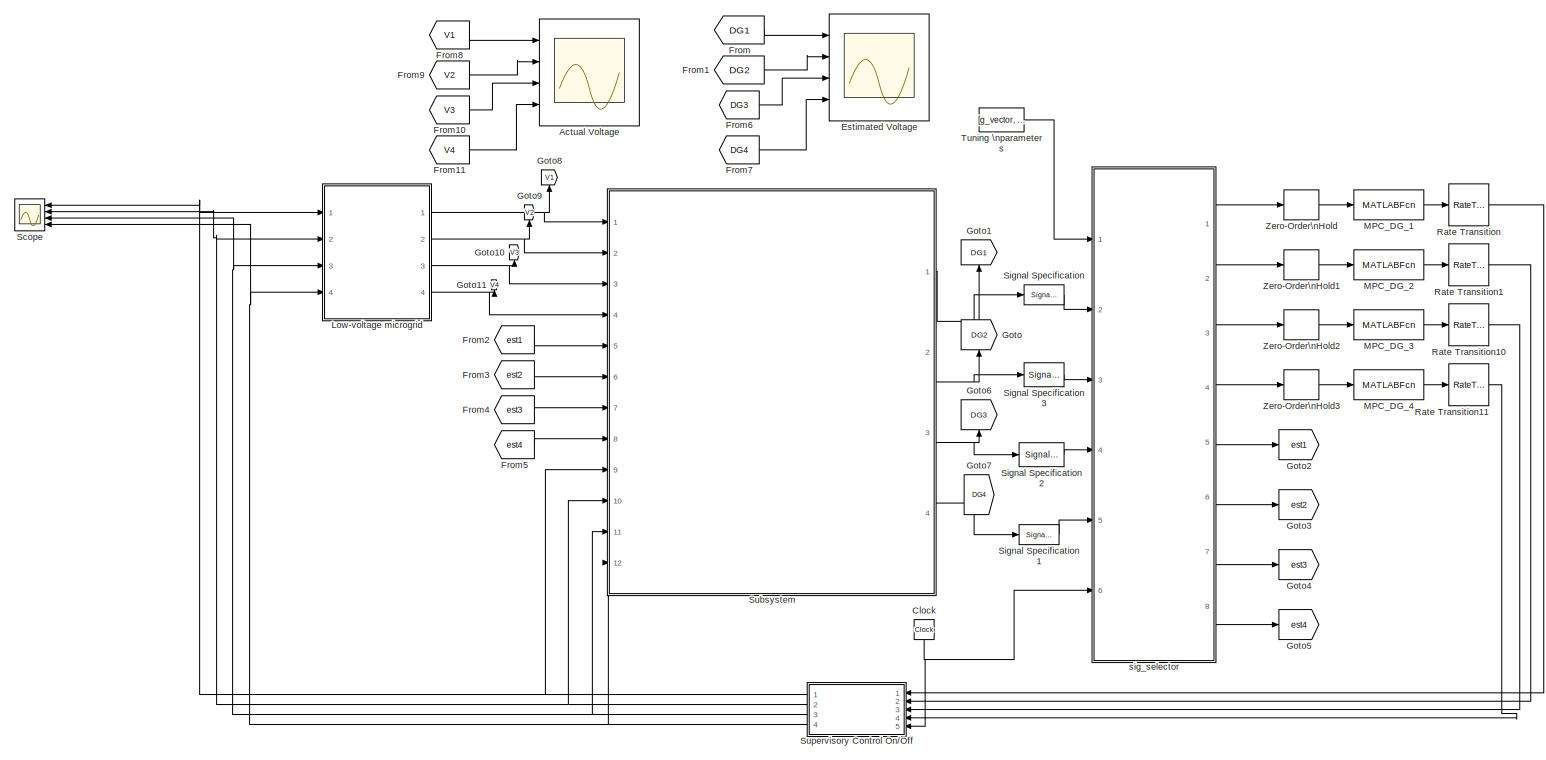
[diagram: root canvas - part 1/1, most of the canvas]
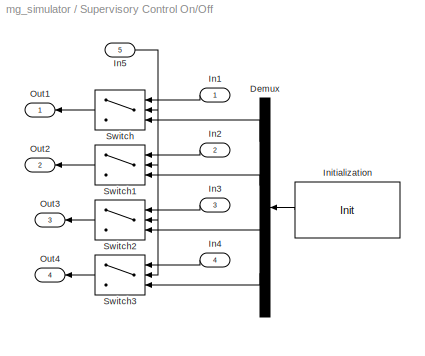
MODEL mg_simulator
KIND model
CONFIG InitFcn = mg_simulator_init
BLOCK [Scope] Actual Voltage
  NumInputPorts = 4
  Ports = [4]
  SID = 976
  ScopeSpecificationString = Simulink.scopes.TimeScopeBlockCfg('CurrentConfiguration', extmgr.ConfigurationSet(extmgr.Configuration('Core','General UI',true),extmgr.Configuration('Core','Source UI',true),extmgr.Configuration('Sources','WiredSimulink',true,'DataLoggingVariableName','ScopeData1'),extmgr.Configuration('Visuals','Time Domain',true,'SerializedDisplays',{struct('MinYLimReal','73.77651','MaxYLimReal','336.37981','YL...<+1710ch>
BLOCK [Clock] Clock
  SID = 163
BLOCK [Scope] Estimated Voltage
  NumInputPorts = 4
  Ports = [4]
  SID = 727
  ScopeSpecificationString = Simulink.scopes.TimeScopeBlockCfg('CurrentConfiguration', extmgr.ConfigurationSet(extmgr.Configuration('Core','General UI',true),extmgr.Configuration('Core','Source UI',true),extmgr.Configuration('Sources','WiredSimulink',true,'DataLoggingVariableName','ScopeData1'),extmgr.Configuration('Visuals','Time Domain',true,'SerializedDisplays',{struct('MinYLimReal','283.95953','MaxYLimReal','340.23079','Y...<+1826ch>
BLOCK [From] From
  GotoTag = DG1
  SID = 470
BLOCK [From] From1
  GotoTag = DG2
  SID = 471
BLOCK [From] From10
  GotoTag = V3
  SID = 987
BLOCK [From] From11
  GotoTag = V4
  SID = 988
BLOCK [From] From2
  GotoTag = est1
  SID = 483
BLOCK [From] From3
  GotoTag = est2
  SID = 485
BLOCK [From] From4
  GotoTag = est3
  SID = 673
BLOCK [From] From5
  GotoTag = est4
  SID = 674
BLOCK [From] From6
  GotoTag = DG3
  SID = 728
BLOCK [From] From7
  GotoTag = DG4
  SID = 729
BLOCK [From] From8
  GotoTag = V1
  SID = 981
BLOCK [From] From9
  GotoTag = V2
  SID = 986
BLOCK [Goto] Goto
  GotoTag = DG2
  SID = 466
BLOCK [Goto] Goto1
  GotoTag = DG1
  SID = 467
BLOCK [Goto] Goto10
  GotoTag = V3
  SID = 984
BLOCK [Goto] Goto11
  GotoTag = V4
  SID = 985
BLOCK [Goto] Goto2
  GotoTag = est1
  SID = 481
BLOCK [Goto] Goto3
  GotoTag = est2
  SID = 482
BLOCK [Goto] Goto4
  GotoTag = est3
  SID = 682
BLOCK [Goto] Goto5
  GotoTag = est4
  SID = 683
BLOCK [Goto] Goto6
  GotoTag = DG3
  SID = 725
BLOCK [Goto] Goto7
  GotoTag = DG4
  SID = 726
BLOCK [Goto] Goto8
  GotoTag = V1
  SID = 982
BLOCK [Goto] Goto9
  GotoTag = V2
  SID = 983
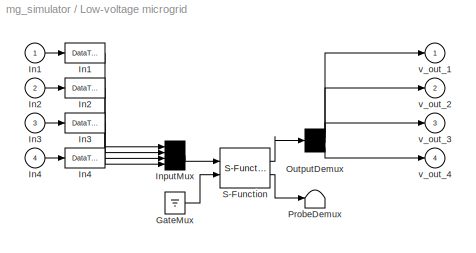
BLOCK [SubSystem] Low-voltage microgrid
  CopyFcn = plecs('sl', 203);
  DeleteFcn = plecs('sl', 205);
  DestroyFcn = plecs('sl', 207);
  ErrorFcn = plerrorfcn
  InitFcn = plecs('sl', 214);
  LoadFcn = plecs('sl', 200);
  NameChangeFcn = plecs('sl', 210);
  OpenFcn = plecs('sl', 202);
  Ports = [4, 4]
  PostSaveFcn = plecs('sl', 201);
  PreCopyFcn = plecs('sl', 216);
  PreSaveFcn = plecs('sl', 211);
  RequestExecContextInheritance = off
  SID = 1036
  StartFcn = plecs('sl', 208);
  StopFcn = plecs('sl', 209);
  UndoDeleteFcn = plecs('sl', 206);
  Variant = off
BLOCK [Ground] Low-voltage microgrid/ GateMux 
  SID = 1036:312
BLOCK [DataTypeConversion] Low-voltage microgrid/ In1 
  SID = 1036:1059
BLOCK [DataTypeConversion] Low-voltage microgrid/ In2 
  SID = 1036:1060
BLOCK [DataTypeConversion] Low-voltage microgrid/ In3 
  SID = 1036:1061
BLOCK [DataTypeConversion] Low-voltage microgrid/ In4 
  SID = 1036:1062
BLOCK [Mux] Low-voltage microgrid/ InputMux 
  Inputs = [ 1 1 1 1 ]
  Ports = [4, 1]
  SID = 1036:400
BLOCK [Demux] Low-voltage microgrid/ OutputDemux 
  Outputs = [ 1 1 1 1 ]
  Ports = [1, 4]
  SID = 1036:23
BLOCK [Terminator] Low-voltage microgrid/ ProbeDemux 
  SID = 1036:4
BLOCK [S-Function] Low-voltage microgrid/ S-Function 
  EnableBusSupport = off
  FunctionName = plecs
  Ports = [2, 2]
  SFcnIsStateOwnerBlock = off
  SFunctionDeploymentMode = off
  SID = 1036:5
BLOCK [Inport] Low-voltage microgrid/In1
  IconDisplay = Port number
  PortDimensions = 1
  SID = 1036:399
BLOCK [Inport] Low-voltage microgrid/In2
  IconDisplay = Port number
  Port = 2
  PortDimensions = 1
  SID = 1036:410
BLOCK [Inport] Low-voltage microgrid/In3
  IconDisplay = Port number
  Port = 3
  PortDimensions = 1
  SID = 1036:411
BLOCK [Inport] Low-voltage microgrid/In4
  IconDisplay = Port number
  Port = 4
  PortDimensions = 1
  SID = 1036:412
BLOCK [Outport] Low-voltage microgrid/v_out_1
  IconDisplay = Port number
  PortDimensions = 1
  SID = 1036:13
BLOCK [Outport] Low-voltage microgrid/v_out_2
  IconDisplay = Port number
  Port = 2
  PortDimensions = 1
  SID = 1036:15
BLOCK [Outport] Low-voltage microgrid/v_out_3
  IconDisplay = Port number
  Port = 3
  PortDimensions = 1
  SID = 1036:16
BLOCK [Outport] Low-voltage microgrid/v_out_4
  IconDisplay = Port number
  Port = 4
  PortDimensions = 1
  SID = 1036:17
BLOCK [MATLABFcn] MPC_DG_1
  MATLABFcn = mpc_run_nodewise_mdl_fast(u(1:2)',u(3),u(4),u(5),u(6),u(7),u(8),u(9),u(10),u(11),u(12),u(13),u(14),u(15))
  Ports = [1, 1]
  SID = 201
  SampleTime = Ts
BLOCK [MATLABFcn] MPC_DG_2
  MATLABFcn = mpc_run_nodewise_mdl_fast2(u(1:2)',u(3:4),u(5:6),u(7),u(8),u(9),u(10),u(11),u(12),u(13),u(14),u(15),u(16),u(17))
  Ports = [1, 1]
  SID = 227
  SampleTime = Ts
BLOCK [MATLABFcn] MPC_DG_3
  MATLABFcn = mpc_run_nodewise_mdl_fast3(u(1:2)',u(3:4),u(5:6),u(7),u(8),u(9),u(10),u(11),u(12),u(13),u(14),u(15),u(16),u(17))
  Ports = [1, 1]
  SID = 675
  SampleTime = Ts
BLOCK [MATLABFcn] MPC_DG_4
  MATLABFcn = mpc_run_nodewise_mdl_fast4(u(1:2)',u(3),u(4),u(5),u(6),u(7),u(8),u(9),u(10),u(11),u(12),u(13),u(14),u(15))
  Ports = [1, 1]
  SID = 678
  SampleTime = Ts
BLOCK [RateTransition] Rate Transition
  OutPortSampleTime = Ts
  OutPortSampleTimeOpt = Inherit
  SID = 226
BLOCK [RateTransition] Rate Transition1
  OutPortSampleTime = Ts
  OutPortSampleTimeOpt = Inherit
  SID = 228
BLOCK [RateTransition] Rate Transition10
  OutPortSampleTime = Ts
  OutPortSampleTimeOpt = Inherit
  SID = 676
BLOCK [RateTransition] Rate Transition11
  OutPortSampleTime = Ts
  OutPortSampleTimeOpt = Inherit
  SID = 679
BLOCK [Scope] Scope
  NumInputPorts = 4
  Ports = [4]
  SID = 991
  ScopeSpecificationString = Simulink.scopes.TimeScopeBlockCfg('CurrentConfiguration', extmgr.ConfigurationSet(extmgr.Configuration('Core','General UI',true),extmgr.Configuration('Core','Source UI',true),extmgr.Configuration('Sources','WiredSimulink',true,'DataLoggingVariableName','ScopeData2'),extmgr.Configuration('Visuals','Time Domain',true,'SerializedDisplays',{struct('MinYLimReal','-26.72559','MaxYLimReal','780.74729','Y...<+1544ch>
BLOCK [SignalSpecification] Signal Specification
  Dimensions = [ 1 2]
  SID = 745
BLOCK [SignalSpecification] Signal Specification1
  Dimensions = [ 1 2]
  SID = 747
BLOCK [SignalSpecification] Signal Specification2
  Dimensions = [ 1 2]
  SID = 748
BLOCK [SignalSpecification] Signal Specification3
  Dimensions = [ 1 2]
  SID = 749
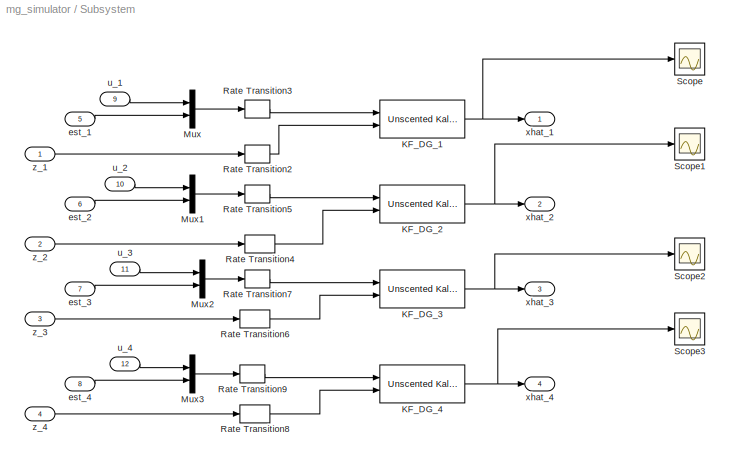
BLOCK [SubSystem] Subsystem
  Ports = [12, 4]
  RequestExecContextInheritance = off
  SID = 707
  Variant = off
BLOCK [Reference] Subsystem/KF_DG_1  REF=sharedTrackingLibrary/Unscented Kalman Filter
  Alpha = 1e-1
  Beta = 2
  DataType = double
  EnableMultirate = off
  HasAdditiveMeasurementNoise1 = Nonadditive
  HasAdditiveMeasurementNoise2 = Additive
  HasAdditiveMeasurementNoise3 = Additive
  HasAdditiveMeasurementNoise4 = Additive
  HasAdditiveMeasurementNoise5 = Additive
  HasAdditiveProcessNoise = Nonadditive
  HasMeasurementEnablePort1 = off
  HasMeasurementEnablePort2 = off
  HasMeasurementEnablePort3 = off
  HasMeasurementEnablePort4 = off
  HasMeasurementEnablePort5 = off
  HasMeasurementFcnExtraArgument1 = 0
  HasMeasurementFcnExtraArgument2 = 0
  HasMeasurementFcnExtraArgument3 = 0
  HasMeasurementFcnExtraArgument4 = 0
  HasMeasurementFcnExtraArgument5 = 0
  HasStateTransitionFcnExtraArgument = 1
  HasTimeVaryingMeasurementNoise1 = off
  HasTimeVaryingMeasurementNoise2 = off
  HasTimeVaryingMeasurementNoise3 = off
  HasTimeVaryingMeasurementNoise4 = off
  HasTimeVaryingMeasurementNoise5 = off
  HasTimeVaryingProcessNoise = off
  InitialState = init_state{i}
  InitialStateCovariance = p_noise_est{i}
  Kappa = 0
  MeasurementFcn1 = estimator_measurementFcn
  MeasurementFcn1SampleTime = 1
  MeasurementFcn2 = myMeasurementFcn
  MeasurementFcn2SampleTime = 1
  MeasurementFcn3 = myMeasurementFcn
  MeasurementFcn3SampleTime = 1
  MeasurementFcn4 = myMeasurementFcn
  MeasurementFcn4SampleTime = 1
  MeasurementFcn5 = myMeasurementFcn
  MeasurementFcn5SampleTime = 1
  MeasurementNoise1 = w_noise_est(i)
  MeasurementNoise2 = 1
  MeasurementNoise3 = 1
  MeasurementNoise4 = 1
  MeasurementNoise5 = 1
  NumberOfMeasurements = 1
  OutputStateCovariance = off
  Ports = [2, 1]
  ProcessNoise = p_noise_est{i}
  SID = 473
  SampleTime = Ts
  SourceBlock = sharedTrackingLibrary/Unscented Kalman Filter
  SourceProductBaseCode = CT
  SourceProductName = Control System Toolbox
  SourceType = Unscented Kalman Filter
  StateTransitionFcn = estimator_pflow_dynamics
  StateTransitionFcnSampleTime = 1
  UseCurrentEstimator = on
BLOCK [Reference] Subsystem/KF_DG_2  REF=sharedTrackingLibrary/Unscented Kalman Filter
  Alpha = 1e-1
  Beta = 2
  DataType = double
  EnableMultirate = off
  HasAdditiveMeasurementNoise1 = Nonadditive
  HasAdditiveMeasurementNoise2 = Additive
  HasAdditiveMeasurementNoise3 = Additive
  HasAdditiveMeasurementNoise4 = Additive
  HasAdditiveMeasurementNoise5 = Additive
  HasAdditiveProcessNoise = Nonadditive
  HasMeasurementEnablePort1 = off
  HasMeasurementEnablePort2 = off
  HasMeasurementEnablePort3 = off
  HasMeasurementEnablePort4 = off
  HasMeasurementEnablePort5 = off
  HasMeasurementFcnExtraArgument1 = 0
  HasMeasurementFcnExtraArgument2 = 0
  HasMeasurementFcnExtraArgument3 = 0
  HasMeasurementFcnExtraArgument4 = 0
  HasMeasurementFcnExtraArgument5 = 0
  HasStateTransitionFcnExtraArgument = 1
  HasTimeVaryingMeasurementNoise1 = off
  HasTimeVaryingMeasurementNoise2 = off
  HasTimeVaryingMeasurementNoise3 = off
  HasTimeVaryingMeasurementNoise4 = off
  HasTimeVaryingMeasurementNoise5 = off
  HasTimeVaryingProcessNoise = off
  InitialState = init_state{i}
  InitialStateCovariance = p_noise_est{i}
  Kappa = 0
  MeasurementFcn1 = estimator_measurementFcn
  MeasurementFcn1SampleTime = 1
  MeasurementFcn2 = myMeasurementFcn
  MeasurementFcn2SampleTime = 1
  MeasurementFcn3 = myMeasurementFcn
  MeasurementFcn3SampleTime = 1
  MeasurementFcn4 = myMeasurementFcn
  MeasurementFcn4SampleTime = 1
  MeasurementFcn5 = myMeasurementFcn
  MeasurementFcn5SampleTime = 1
  MeasurementNoise1 = w_noise_est(i)
  MeasurementNoise2 = 1
  MeasurementNoise3 = 1
  MeasurementNoise4 = 1
  MeasurementNoise5 = 1
  NumberOfMeasurements = 1
  OutputStateCovariance = off
  Ports = [2, 1]
  ProcessNoise = p_noise_est{i}
  SID = 740
  SampleTime = Ts
  SourceBlock = sharedTrackingLibrary/Unscented Kalman Filter
  SourceProductBaseCode = CT
  SourceProductName = Control System Toolbox
  SourceType = Unscented Kalman Filter
  StateTransitionFcn = estimator_pflow_dynamics
  StateTransitionFcnSampleTime = 1
  UseCurrentEstimator = on
BLOCK [Reference] Subsystem/KF_DG_3  REF=sharedTrackingLibrary/Unscented Kalman Filter
  Alpha = 1e-1
  Beta = 2
  DataType = double
  EnableMultirate = off
  HasAdditiveMeasurementNoise1 = Nonadditive
  HasAdditiveMeasurementNoise2 = Additive
  HasAdditiveMeasurementNoise3 = Additive
  HasAdditiveMeasurementNoise4 = Additive
  HasAdditiveMeasurementNoise5 = Additive
  HasAdditiveProcessNoise = Nonadditive
  HasMeasurementEnablePort1 = off
  HasMeasurementEnablePort2 = off
  HasMeasurementEnablePort3 = off
  HasMeasurementEnablePort4 = off
  HasMeasurementEnablePort5 = off
  HasMeasurementFcnExtraArgument1 = 0
  HasMeasurementFcnExtraArgument2 = 0
  HasMeasurementFcnExtraArgument3 = 0
  HasMeasurementFcnExtraArgument4 = 0
  HasMeasurementFcnExtraArgument5 = 0
  HasStateTransitionFcnExtraArgument = 1
  HasTimeVaryingMeasurementNoise1 = off
  HasTimeVaryingMeasurementNoise2 = off
  HasTimeVaryingMeasurementNoise3 = off
  HasTimeVaryingMeasurementNoise4 = off
  HasTimeVaryingMeasurementNoise5 = off
  HasTimeVaryingProcessNoise = off
  InitialState = init_state{i}
  InitialStateCovariance = p_noise_est{i}
  Kappa = 0
  MeasurementFcn1 = estimator_measurementFcn
  MeasurementFcn1SampleTime = 1
  MeasurementFcn2 = myMeasurementFcn
  MeasurementFcn2SampleTime = 1
  MeasurementFcn3 = myMeasurementFcn
  MeasurementFcn3SampleTime = 1
  MeasurementFcn4 = myMeasurementFcn
  MeasurementFcn4SampleTime = 1
  MeasurementFcn5 = myMeasurementFcn
  MeasurementFcn5SampleTime = 1
  MeasurementNoise1 = w_noise_est(i)
  MeasurementNoise2 = 1
  MeasurementNoise3 = 1
  MeasurementNoise4 = 1
  MeasurementNoise5 = 1
  NumberOfMeasurements = 1
  OutputStateCovariance = off
  Ports = [2, 1]
  ProcessNoise = p_noise_est{i}
  SID = 741
  SampleTime = Ts
  SourceBlock = sharedTrackingLibrary/Unscented Kalman Filter
  SourceProductBaseCode = CT
  SourceProductName = Control System Toolbox
  SourceType = Unscented Kalman Filter
  StateTransitionFcn = estimator_pflow_dynamics
  StateTransitionFcnSampleTime = 1
  UseCurrentEstimator = on
BLOCK [Reference] Subsystem/KF_DG_4  REF=sharedTrackingLibrary/Unscented Kalman Filter
  Alpha = 1e-1
  Beta = 2
  DataType = double
  EnableMultirate = off
  HasAdditiveMeasurementNoise1 = Nonadditive
  HasAdditiveMeasurementNoise2 = Additive
  HasAdditiveMeasurementNoise3 = Additive
  HasAdditiveMeasurementNoise4 = Additive
  HasAdditiveMeasurementNoise5 = Additive
  HasAdditiveProcessNoise = Nonadditive
  HasMeasurementEnablePort1 = off
  HasMeasurementEnablePort2 = off
  HasMeasurementEnablePort3 = off
  HasMeasurementEnablePort4 = off
  HasMeasurementEnablePort5 = off
  HasMeasurementFcnExtraArgument1 = 0
  HasMeasurementFcnExtraArgument2 = 0
  HasMeasurementFcnExtraArgument3 = 0
  HasMeasurementFcnExtraArgument4 = 0
  HasMeasurementFcnExtraArgument5 = 0
  HasStateTransitionFcnExtraArgument = 1
  HasTimeVaryingMeasurementNoise1 = off
  HasTimeVaryingMeasurementNoise2 = off
  HasTimeVaryingMeasurementNoise3 = off
  HasTimeVaryingMeasurementNoise4 = off
  HasTimeVaryingMeasurementNoise5 = off
  HasTimeVaryingProcessNoise = off
  InitialState = init_state{i}
  InitialStateCovariance = p_noise_est{i}
  Kappa = 0
  MeasurementFcn1 = estimator_measurementFcn
  MeasurementFcn1SampleTime = 1
  MeasurementFcn2 = myMeasurementFcn
  MeasurementFcn2SampleTime = 1
  MeasurementFcn3 = myMeasurementFcn
  MeasurementFcn3SampleTime = 1
  MeasurementFcn4 = myMeasurementFcn
  MeasurementFcn4SampleTime = 1
  MeasurementFcn5 = myMeasurementFcn
  MeasurementFcn5SampleTime = 1
  MeasurementNoise1 = w_noise_est(i)
  MeasurementNoise2 = 1
  MeasurementNoise3 = 1
  MeasurementNoise4 = 1
  MeasurementNoise5 = 1
  NumberOfMeasurements = 1
  OutputStateCovariance = off
  Ports = [2, 1]
  ProcessNoise = p_noise_est{i}
  SID = 744
  SampleTime = Ts
  SourceBlock = sharedTrackingLibrary/Unscented Kalman Filter
  SourceProductBaseCode = CT
  SourceProductName = Control System Toolbox
  SourceType = Unscented Kalman Filter
  StateTransitionFcn = estimator_pflow_dynamics
  StateTransitionFcnSampleTime = 1
  UseCurrentEstimator = on
BLOCK [Mux] Subsystem/Mux
  DisplayOption = bar
  Inputs = 2
  Ports = [2, 1]
  SID = 475
BLOCK [Mux] Subsystem/Mux1
  DisplayOption = bar
  Inputs = 2
  Ports = [2, 1]
  SID = 478
BLOCK [Mux] Subsystem/Mux2
  DisplayOption = bar
  Inputs = 2
  Ports = [2, 1]
  SID = 665
BLOCK [Mux] Subsystem/Mux3
  DisplayOption = bar
  Inputs = 2
  Ports = [2, 1]
  SID = 669
BLOCK [RateTransition] Subsystem/Rate Transition2
  SID = 486
BLOCK [RateTransition] Subsystem/Rate Transition3
  SID = 487
BLOCK [RateTransition] Subsystem/Rate Transition4
  SID = 488
BLOCK [RateTransition] Subsystem/Rate Transition5
  SID = 489
BLOCK [RateTransition] Subsystem/Rate Transition6
  SID = 666
BLOCK [RateTransition] Subsystem/Rate Transition7
  SID = 667
BLOCK [RateTransition] Subsystem/Rate Transition8
  SID = 670
BLOCK [RateTransition] Subsystem/Rate Transition9
  SID = 671
BLOCK [Scope] Subsystem/Scope
  NumInputPorts = 1
  Ports = [1]
  SID = 750
  ScopeSpecificationString = Simulink.scopes.TimeScopeBlockCfg('CurrentConfiguration', extmgr.ConfigurationSet(extmgr.Configuration('Core','General UI',true),extmgr.Configuration('Core','Source UI',true),extmgr.Configuration('Sources','WiredSimulink',true,'DataLoggingVariableName','ScopeData1'),extmgr.Configuration('Visuals','Time Domain',true,'SerializedDisplays',{struct('MinYLimReal','303.53813','MaxYLimReal','318.53513','Y...<+1448ch>
BLOCK [Scope] Subsystem/Scope1
  NumInputPorts = 1
  Ports = [1]
  SID = 751
  ScopeSpecificationString = Simulink.scopes.TimeScopeBlockCfg('CurrentConfiguration', extmgr.ConfigurationSet(extmgr.Configuration('Core','General UI',true),extmgr.Configuration('Core','Source UI',true),extmgr.Configuration('Sources','WiredSimulink',true,'DataLoggingVariableName','ScopeData2'),extmgr.Configuration('Visuals','Time Domain',true,'SerializedDisplays',{struct('MinYLimReal','303.53813','MaxYLimReal','318.53513','Y...<+1431ch>
BLOCK [Scope] Subsystem/Scope2
  NumInputPorts = 1
  Ports = [1]
  SID = 752
  ScopeSpecificationString = Simulink.scopes.TimeScopeBlockCfg('CurrentConfiguration', extmgr.ConfigurationSet(extmgr.Configuration('Core','General UI',true),extmgr.Configuration('Core','Source UI',true),extmgr.Configuration('Sources','WiredSimulink',true,'DataLoggingVariableName','ScopeData3'),extmgr.Configuration('Visuals','Time Domain',true),extmgr.Configuration('Tools','Plot Navigation',true),extmgr.Configuration('Tools',...<+40ch>
BLOCK [Scope] Subsystem/Scope3
  NumInputPorts = 1
  Ports = [1]
  SID = 753
  ScopeSpecificationString = Simulink.scopes.TimeScopeBlockCfg('CurrentConfiguration', extmgr.ConfigurationSet(extmgr.Configuration('Core','General UI',true),extmgr.Configuration('Core','Source UI',true),extmgr.Configuration('Sources','WiredSimulink',true,'DataLoggingVariableName','ScopeData4'),extmgr.Configuration('Visuals','Time Domain',true),extmgr.Configuration('Tools','Plot Navigation',true),extmgr.Configuration('Tools',...<+40ch>
BLOCK [Inport] Subsystem/est_1
  IconDisplay = Port number
  Port = 5
  SID = 712
BLOCK [Inport] Subsystem/est_2
  IconDisplay = Port number
  Port = 6
  SID = 713
BLOCK [Inport] Subsystem/est_3
  IconDisplay = Port number
  Port = 7
  SID = 714
BLOCK [Inport] Subsystem/est_4
  IconDisplay = Port number
  Port = 8
  SID = 715
BLOCK [Inport] Subsystem/u_1
  IconDisplay = Port number
  Port = 9
  SID = 716
BLOCK [Inport] Subsystem/u_2
  IconDisplay = Port number
  Port = 10
  SID = 717
BLOCK [Inport] Subsystem/u_3
  IconDisplay = Port number
  Port = 11
  SID = 718
BLOCK [Inport] Subsystem/u_4
  IconDisplay = Port number
  Port = 12
  SID = 719
BLOCK [Outport] Subsystem/xhat_1
  IconDisplay = Port number
  SID = 720
BLOCK [Outport] Subsystem/xhat_2
  IconDisplay = Port number
  Port = 2
  SID = 723
BLOCK [Outport] Subsystem/xhat_3
  IconDisplay = Port number
  Port = 3
  SID = 724
BLOCK [Outport] Subsystem/xhat_4
  IconDisplay = Port number
  Port = 4
  SID = 722
BLOCK [Inport] Subsystem/z_1
  IconDisplay = Port number
  SID = 708
BLOCK [Inport] Subsystem/z_2
  IconDisplay = Port number
  Port = 2
  SID = 709
BLOCK [Inport] Subsystem/z_3
  IconDisplay = Port number
  Port = 3
  SID = 710
BLOCK [Inport] Subsystem/z_4
  IconDisplay = Port number
  Port = 4
  SID = 711
BLOCK [SubSystem] Supervisory Control On//Off
  Ports = [5, 4]
  RequestExecContextInheritance = off
  SID = 242
  Variant = off
BLOCK [Demux] Supervisory Control On//Off/Demux
  DisplayOption = bar
  Ports = [1, 4]
  SID = 241
BLOCK [Inport] Supervisory Control On//Off/In1
  IconDisplay = Port number
  SID = 243
BLOCK [Inport] Supervisory Control On//Off/In2
  IconDisplay = Port number
  Port = 2
  SID = 244
BLOCK [Inport] Supervisory Control On//Off/In3
  IconDisplay = Port number
  Port = 3
  SID = 686
BLOCK [Inport] Supervisory Control On//Off/In4
  IconDisplay = Port number
  Port = 4
  SID = 687
BLOCK [Inport] Supervisory Control On//Off/In5
  IconDisplay = Port number
  Port = 5
  SID = 247
BLOCK [Constant] Supervisory Control On//Off/Initialization
  SID = 240
  Value = Init
BLOCK [Outport] Supervisory Control On//Off/Out1
  IconDisplay = Port number
  SID = 248
BLOCK [Outport] Supervisory Control On//Off/Out2
  IconDisplay = Port number
  Port = 2
  SID = 249
BLOCK [Outport] Supervisory Control On//Off/Out3
  IconDisplay = Port number
  Port = 3
  SID = 688
BLOCK [Outport] Supervisory Control On//Off/Out4
  IconDisplay = Port number
  Port = 4
  SID = 689
BLOCK [Switch] Supervisory Control On//Off/Switch
  InputSameDT = off
  SID = 236
  SaturateOnIntegerOverflow = off
  Threshold = Thresh
BLOCK [Switch] Supervisory Control On//Off/Switch1
  InputSameDT = off
  SID = 237
  SaturateOnIntegerOverflow = off
  Threshold = Thresh
BLOCK [Switch] Supervisory Control On//Off/Switch2
  InputSameDT = off
  SID = 684
  SaturateOnIntegerOverflow = off
  Threshold = Thresh
BLOCK [Switch] Supervisory Control On//Off/Switch3
  InputSameDT = off
  SID = 685
  SaturateOnIntegerOverflow = off
  Threshold = Thresh
BLOCK [Constant] Tuning \nparameters
  SID = 15
  Value = [g_vector, N, v_ref, Ts, Q, R, W, Q_Li, n_Qi, Q_di]
BLOCK [ZeroOrderHold] Zero-Order\nHold
  SID = 224
  SampleTime = Ts
BLOCK [ZeroOrderHold] Zero-Order\nHold1
  SID = 229
  SampleTime = Ts
BLOCK [ZeroOrderHold] Zero-Order\nHold2
  SID = 677
  SampleTime = Ts
BLOCK [ZeroOrderHold] Zero-Order\nHold3
  SID = 680
  SampleTime = Ts
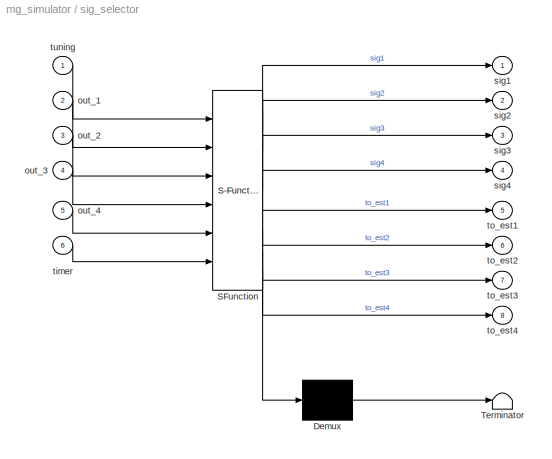
BLOCK [SubSystem] sig_selector
  ErrorFcn = Stateflow.Translate.translate
  PermitHierarchicalResolution = ExplicitOnly
  Ports = [6, 8]
  RequestExecContextInheritance = off
  SFBlockType = MATLAB Function
  SID = 200
  TreatAsAtomicUnit = on
  Variant = off
BLOCK [Demux] sig_selector/ Demux 
  Outputs = 1
  Ports = [1, 1]
  SID = 200::32
BLOCK [S-Function] sig_selector/ SFunction 
  EnableBusSupport = on
  FunctionName = sf_sfun
  PortCounts = [6 9]
  Ports = [6, 9]
  SFcnIsStateOwnerBlock = off
  SFunctionDeploymentMode = off
  SID = 200::31
  Tag = Stateflow S-Function mg_simulator 2
BLOCK [Terminator] sig_selector/ Terminator 
  SID = 200::33
BLOCK [Inport] sig_selector/out_1
  IconDisplay = Port number
  Port = 2
  SID = 200::23
BLOCK [Inport] sig_selector/out_2
  IconDisplay = Port number
  Port = 3
  SID = 200::24
BLOCK [Inport] sig_selector/out_3
  IconDisplay = Port number
  Port = 4
  SID = 200::45
BLOCK [Inport] sig_selector/out_4
  IconDisplay = Port number
  Port = 5
  SID = 200::46
BLOCK [Outport] sig_selector/sig1
  IconDisplay = Port number
  SID = 200::5
BLOCK [Outport] sig_selector/sig2
  IconDisplay = Port number
  Port = 2
  SID = 200::27
BLOCK [Outport] sig_selector/sig3
  IconDisplay = Port number
  Port = 3
  SID = 200::41
BLOCK [Outport] sig_selector/sig4
  IconDisplay = Port number
  Port = 4
  SID = 200::42
BLOCK [Inport] sig_selector/timer
  IconDisplay = Port number
  Port = 6
  SID = 200::30
BLOCK [Outport] sig_selector/to_est1
  IconDisplay = Port number
  Port = 5
  SID = 200::39
BLOCK [Outport] sig_selector/to_est2
  IconDisplay = Port number
  Port = 6
  SID = 200::40
BLOCK [Outport] sig_selector/to_est3
  IconDisplay = Port number
  Port = 7
  SID = 200::43
BLOCK [Outport] sig_selector/to_est4
  IconDisplay = Port number
  Port = 8
  SID = 200::44
BLOCK [Inport] sig_selector/tuning
  IconDisplay = Port number
  SID = 200::22
NET Clock:1 -> Supervisory Control On//Off:5, sig_selector:6
LINE From10:1 -> Actual Voltage:3
LINE From11:1 -> Actual Voltage:4
LINE From1:1 -> Estimated Voltage:2
LINE From2:1 -> Subsystem:5
LINE From3:1 -> Subsystem:6
LINE From4:1 -> Subsystem:7
LINE From5:1 -> Subsystem:8
LINE From6:1 -> Estimated Voltage:3
LINE From7:1 -> Estimated Voltage:4
LINE From8:1 -> Actual Voltage:1
LINE From9:1 -> Actual Voltage:2
LINE From:1 -> Estimated Voltage:1
LINE Low-voltage microgrid/ GateMux :1 -> Low-voltage microgrid/ S-Function :2
LINE Low-voltage microgrid/ In1 :1 -> Low-voltage microgrid/ InputMux :1
LINE Low-voltage microgrid/ In2 :1 -> Low-voltage microgrid/ InputMux :2
LINE Low-voltage microgrid/ In3 :1 -> Low-voltage microgrid/ InputMux :3
LINE Low-voltage microgrid/ In4 :1 -> Low-voltage microgrid/ InputMux :4
LINE Low-voltage microgrid/ InputMux :1 -> Low-voltage microgrid/ S-Function :1
LINE Low-voltage microgrid/ OutputDemux :1 -> Low-voltage microgrid/v_out_1:1
LINE Low-voltage microgrid/ OutputDemux :2 -> Low-voltage microgrid/v_out_2:1
LINE Low-voltage microgrid/ OutputDemux :3 -> Low-voltage microgrid/v_out_3:1
LINE Low-voltage microgrid/ OutputDemux :4 -> Low-voltage microgrid/v_out_4:1
LINE Low-voltage microgrid/ S-Function :1 -> Low-voltage microgrid/ OutputDemux :1
LINE Low-voltage microgrid/ S-Function :2 -> Low-voltage microgrid/ ProbeDemux :1
LINE Low-voltage microgrid/In1:1 -> Low-voltage microgrid/ In1 :1
LINE Low-voltage microgrid/In2:1 -> Low-voltage microgrid/ In2 :1
LINE Low-voltage microgrid/In3:1 -> Low-voltage microgrid/ In3 :1
LINE Low-voltage microgrid/In4:1 -> Low-voltage microgrid/ In4 :1
NET Low-voltage microgrid:1 -> Goto8:1, Subsystem:1
NET Low-voltage microgrid:2 -> Goto9:1, Subsystem:2
NET Low-voltage microgrid:3 -> Goto10:1, Subsystem:3
NET Low-voltage microgrid:4 -> Goto11:1, Subsystem:4
LINE MPC_DG_1:1 -> Rate Transition:1
LINE MPC_DG_2:1 -> Rate Transition1:1
LINE MPC_DG_3:1 -> Rate Transition10:1
LINE MPC_DG_4:1 -> Rate Transition11:1
LINE Rate Transition10:1 -> Supervisory Control On//Off:3
LINE Rate Transition11:1 -> Supervisory Control On//Off:4
LINE Rate Transition1:1 -> Supervisory Control On//Off:2
LINE Rate Transition:1 -> Supervisory Control On//Off:1
LINE Signal Specification1:1 -> sig_selector:5
LINE Signal Specification2:1 -> sig_selector:4
LINE Signal Specification3:1 -> sig_selector:3
LINE Signal Specification:1 -> sig_selector:2
NET Subsystem/KF_DG_1:1 -> Subsystem/Scope:1, Subsystem/xhat_1:1
NET Subsystem/KF_DG_2:1 -> Subsystem/Scope1:1, Subsystem/xhat_2:1
NET Subsystem/KF_DG_3:1 -> Subsystem/Scope2:1, Subsystem/xhat_3:1
NET Subsystem/KF_DG_4:1 -> Subsystem/Scope3:1, Subsystem/xhat_4:1
LINE Subsystem/Mux1:1 -> Subsystem/Rate Transition5:1
LINE Subsystem/Mux2:1 -> Subsystem/Rate Transition7:1
LINE Subsystem/Mux3:1 -> Subsystem/Rate Transition9:1
LINE Subsystem/Mux:1 -> Subsystem/Rate Transition3:1
LINE Subsystem/Rate Transition2:1 -> Subsystem/KF_DG_1:2
LINE Subsystem/Rate Transition3:1 -> Subsystem/KF_DG_1:1
LINE Subsystem/Rate Transition4:1 -> Subsystem/KF_DG_2:2
LINE Subsystem/Rate Transition5:1 -> Subsystem/KF_DG_2:1
LINE Subsystem/Rate Transition6:1 -> Subsystem/KF_DG_3:2
LINE Subsystem/Rate Transition7:1 -> Subsystem/KF_DG_3:1
LINE Subsystem/Rate Transition8:1 -> Subsystem/KF_DG_4:2
LINE Subsystem/Rate Transition9:1 -> Subsystem/KF_DG_4:1
LINE Subsystem/est_1:1 -> Subsystem/Mux:2
LINE Subsystem/est_2:1 -> Subsystem/Mux1:2
LINE Subsystem/est_3:1 -> Subsystem/Mux2:2
LINE Subsystem/est_4:1 -> Subsystem/Mux3:2
LINE Subsystem/u_1:1 -> Subsystem/Mux:1
LINE Subsystem/u_2:1 -> Subsystem/Mux1:1
LINE Subsystem/u_3:1 -> Subsystem/Mux2:1
LINE Subsystem/u_4:1 -> Subsystem/Mux3:1
LINE Subsystem/z_1:1 -> Subsystem/Rate Transition2:1
LINE Subsystem/z_2:1 -> Subsystem/Rate Transition4:1
LINE Subsystem/z_3:1 -> Subsystem/Rate Transition6:1
LINE Subsystem/z_4:1 -> Subsystem/Rate Transition8:1
NET Subsystem:1 -> Goto1:1, Signal Specification:1
NET Subsystem:2 -> Goto:1, Signal Specification3:1
NET Subsystem:3 -> Goto6:1, Signal Specification2:1
NET Subsystem:4 -> Goto7:1, Signal Specification1:1
LINE Supervisory Control On//Off/Demux:1 -> Supervisory Control On//Off/Switch:3
LINE Supervisory Control On//Off/Demux:2 -> Supervisory Control On//Off/Switch1:3
LINE Supervisory Control On//Off/Demux:3 -> Supervisory Control On//Off/Switch2:3
LINE Supervisory Control On//Off/Demux:4 -> Supervisory Control On//Off/Switch3:3
LINE Supervisory Control On//Off/In1:1 -> Supervisory Control On//Off/Switch:1
LINE Supervisory Control On//Off/In2:1 -> Supervisory Control On//Off/Switch1:1
LINE Supervisory Control On//Off/In3:1 -> Supervisory Control On//Off/Switch2:1
LINE Supervisory Control On//Off/In4:1 -> Supervisory Control On//Off/Switch3:1
NET Supervisory Control On//Off/In5:1 -> Supervisory Control On//Off/Switch1:2, Supervisory Control On//Off/Switch2:2, Supervisory Control On//Off/Switch3:2, Supervisory Control On//Off/Switch:2
LINE Supervisory Control On//Off/Initialization:1 -> Supervisory Control On//Off/Demux:1
LINE Supervisory Control On//Off/Switch1:1 -> Supervisory Control On//Off/Out2:1
LINE Supervisory Control On//Off/Switch2:1 -> Supervisory Control On//Off/Out3:1
LINE Supervisory Control On//Off/Switch3:1 -> Supervisory Control On//Off/Out4:1
LINE Supervisory Control On//Off/Switch:1 -> Supervisory Control On//Off/Out1:1
NET Supervisory Control On//Off:1 -> Low-voltage microgrid:1, Scope:1, Subsystem:9
NET Supervisory Control On//Off:2 -> Low-voltage microgrid:2, Scope:2, Subsystem:10
NET Supervisory Control On//Off:3 -> Low-voltage microgrid:3, Scope:3, Subsystem:11
NET Supervisory Control On//Off:4 -> Low-voltage microgrid:4, Scope:4, Subsystem:12
LINE Tuning \nparameters:1 -> sig_selector:1
LINE Zero-Order\nHold1:1 -> MPC_DG_2:1
LINE Zero-Order\nHold2:1 -> MPC_DG_3:1
LINE Zero-Order\nHold3:1 -> MPC_DG_4:1
LINE Zero-Order\nHold:1 -> MPC_DG_1:1
LINE sig_selector/ Demux :1 -> sig_selector/ Terminator :1
LINE sig_selector/ SFunction :1 -> sig_selector/ Demux :1
LINE sig_selector/ SFunction :2 -> sig_selector/sig1:1
LINE sig_selector/ SFunction :3 -> sig_selector/sig2:1
LINE sig_selector/ SFunction :4 -> sig_selector/sig3:1
LINE sig_selector/ SFunction :5 -> sig_selector/sig4:1
LINE sig_selector/ SFunction :6 -> sig_selector/to_est1:1
LINE sig_selector/ SFunction :7 -> sig_selector/to_est2:1
LINE sig_selector/ SFunction :8 -> sig_selector/to_est3:1
LINE sig_selector/ SFunction :9 -> sig_selector/to_est4:1
LINE sig_selector/out_1:1 -> sig_selector/ SFunction :2
LINE sig_selector/out_2:1 -> sig_selector/ SFunction :3
LINE sig_selector/out_3:1 -> sig_selector/ SFunction :4
LINE sig_selector/out_4:1 -> sig_selector/ SFunction :5
LINE sig_selector/timer:1 -> sig_selector/ SFunction :6
LINE sig_selector/tuning:1 -> sig_selector/ SFunction :1
LINE sig_selector:1 -> Zero-Order\nHold:1
LINE sig_selector:2 -> Zero-Order\nHold1:1
LINE sig_selector:3 -> Zero-Order\nHold2:1
LINE sig_selector:4 -> Zero-Order\nHold3:1
LINE sig_selector:5 -> Goto2:1
LINE sig_selector:6 -> Goto3:1
LINE sig_selector:7 -> Goto4:1
LINE sig_selector:8 -> Goto5:1
note: NET lines group one-source signal fan-out (src -> all destinations, sorted); 1:1 wires keep LINE
CHART sig_selector states=1 transitions=1
  STATE_LABEL 'eML_blk_kernel()'
